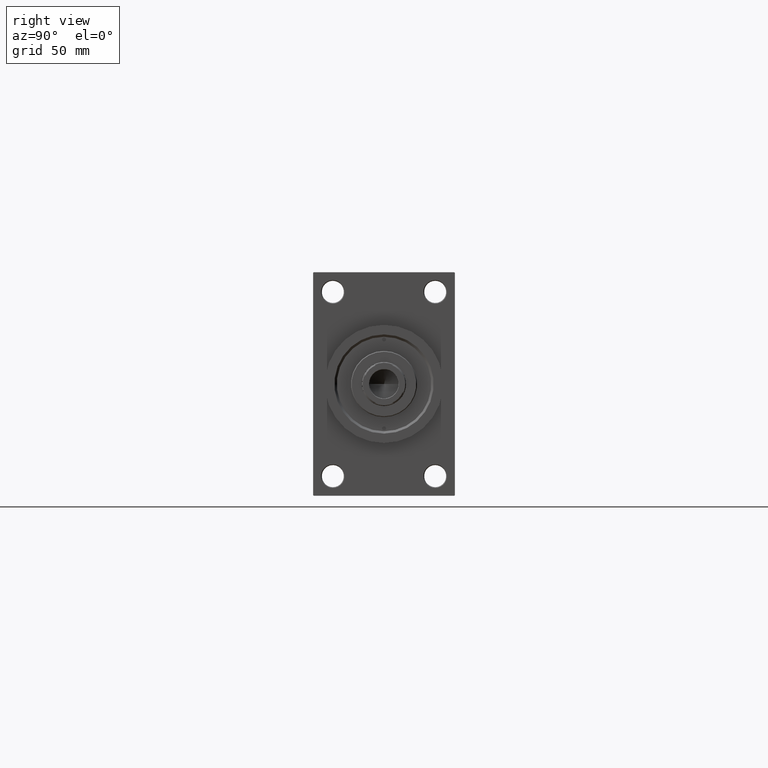
[diagram: clean part render]
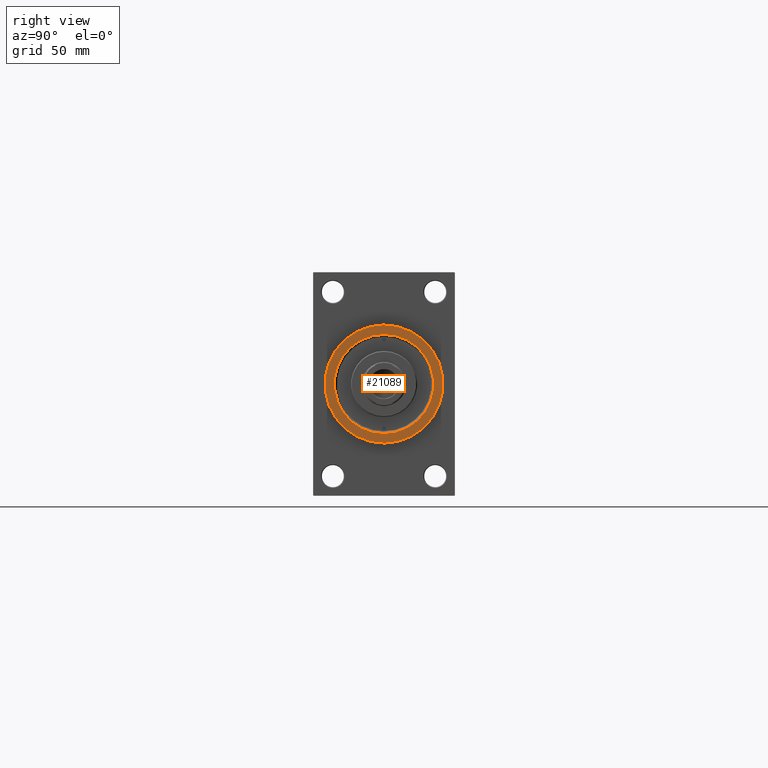
[diagram: same view with one face highlighted and labeled with its STEP entity id]
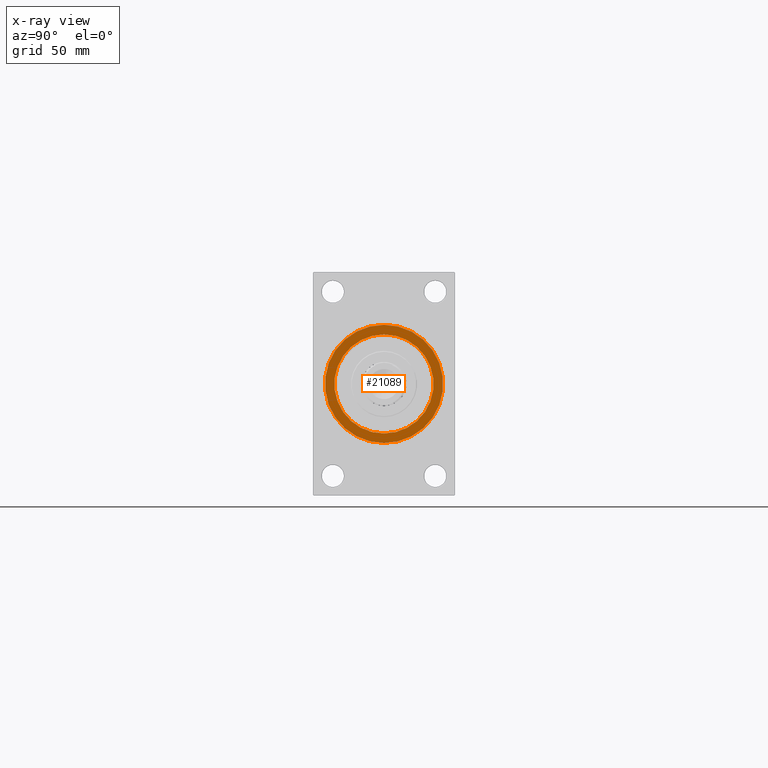
[diagram: x-ray of the same camera — body ghosted, the highlighted face saturated]
A machine part, right view. The second image highlights one B-rep face of the part: STEP entity #21089.
The next image is the same camera in x-ray: the body ghosted, the highlighted face saturated — about 0% of this face is hidden behind the body in this view.
In plain terms, the highlighted planar face has unit normal (1, 0, 0).
Its self-contained STEP definition (entity closure, byte-faithful):
#9 = EDGE_CURVE ( 'NONE', #11945, #34009, #27813, .T. ) ;
#1362 = ORIENTED_EDGE ( 'NONE', *, *, #11367, .T. ) ;
#1503 = CARTESIAN_POINT ( 'NONE',  ( 385.9999999999999432, 0.000000000000000000, 0.000000000000000000 ) ) ;
#1558 = FACE_OUTER_BOUND ( 'NONE', #30790, .T. ) ;
#2254 = FACE_BOUND ( 'NONE', #5325, .T. ) ;
#3527 = DIRECTION ( 'NONE',  ( 0.000000000000000000, 0.000000000000000000, -1.000000000000000000 ) ) ;
#3907 = ORIENTED_EDGE ( 'NONE', *, *, #7482, .T. ) ;
#4878 = EDGE_CURVE ( 'NONE', #9033, #45975, #26296, .T. ) ;
#5325 = EDGE_LOOP ( 'NONE', ( #31170, #3907 ) ) ;
#5759 = CIRCLE ( 'NONE', #20336, 31.50000000000008527 ) ;
#7482 = EDGE_CURVE ( 'NONE', #45975, #9033, #5759, .T. ) ;
#9033 = VERTEX_POINT ( 'NONE', #28896 ) ;
#10240 = CARTESIAN_POINT ( 'NONE',  ( 385.9999999999999432, 3.857637417314172944E-15, 31.50000000000008527 ) ) ;
#11367 = EDGE_CURVE ( 'NONE', #34009, #11945, #45664, .T. ) ;
#11550 = DIRECTION ( 'NONE',  ( 0.000000000000000000, 0.000000000000000000, -1.000000000000000000 ) ) ;
#11945 = VERTEX_POINT ( 'NONE', #26903 ) ;
#12360 = CARTESIAN_POINT ( 'NONE',  ( 385.9999999999999432, 0.000000000000000000, 0.000000000000000000 ) ) ;
#14309 = AXIS2_PLACEMENT_3D ( 'NONE', #22233, #36818, #3527 ) ;
#19728 = DIRECTION ( 'NONE',  ( 0.000000000000000000, 0.000000000000000000, -1.000000000000000000 ) ) ;
#20336 = AXIS2_PLACEMENT_3D ( 'NONE', #37657, #33826, #11550 ) ;
#21089 = ADVANCED_FACE ( 'NONE', ( #2254, #1558 ), #38679, .T. ) ;
#22233 = CARTESIAN_POINT ( 'NONE',  ( 385.9999999999999432, 0.000000000000000000, 0.000000000000000000 ) ) ;
#26296 = CIRCLE ( 'NONE', #39334, 31.50000000000008527 ) ;
#26304 = AXIS2_PLACEMENT_3D ( 'NONE', #1503, #33845, #19728 ) ;
#26903 = CARTESIAN_POINT ( 'NONE',  ( 385.9999999999999432, 4.592425496802575156E-15, -37.50000000000000711 ) ) ;
#27813 = CIRCLE ( 'NONE', #26304, 37.50000000000000711 ) ;
#28443 = ORIENTED_EDGE ( 'NONE', *, *, #9, .T. ) ;
#28896 = CARTESIAN_POINT ( 'NONE',  ( 385.9999999999999432, 0.000000000000000000, -31.50000000000008527 ) ) ;
#29712 = DIRECTION ( 'NONE',  ( -1.000000000000000000, -0.000000000000000000, -0.000000000000000000 ) ) ;
#30790 = EDGE_LOOP ( 'NONE', ( #1362, #28443 ) ) ;
#31170 = ORIENTED_EDGE ( 'NONE', *, *, #4878, .T. ) ;
#31493 = DIRECTION ( 'NONE',  ( 0.000000000000000000, 0.000000000000000000, -1.000000000000000000 ) ) ;
#33290 = CARTESIAN_POINT ( 'NONE',  ( 385.9999999999999432, 0.000000000000000000, 0.000000000000000000 ) ) ;
#33826 = DIRECTION ( 'NONE',  ( -1.000000000000000000, -0.000000000000000000, -0.000000000000000000 ) ) ;
#33845 = DIRECTION ( 'NONE',  ( 1.000000000000000000, 0.000000000000000000, 0.000000000000000000 ) ) ;
#34009 = VERTEX_POINT ( 'NONE', #43976 ) ;
#36818 = DIRECTION ( 'NONE',  ( 1.000000000000000000, 0.000000000000000000, 0.000000000000000000 ) ) ;
#37657 = CARTESIAN_POINT ( 'NONE',  ( 385.9999999999999432, 0.000000000000000000, 0.000000000000000000 ) ) ;
#38024 = DIRECTION ( 'NONE',  ( 0.000000000000000000, 0.000000000000000000, -1.000000000000000000 ) ) ;
#38679 = PLANE ( 'NONE',  #40748 ) ;
#39334 = AXIS2_PLACEMENT_3D ( 'NONE', #33290, #29712, #38024 ) ;
#40748 = AXIS2_PLACEMENT_3D ( 'NONE', #12360, #42276, #31493 ) ;
#42276 = DIRECTION ( 'NONE',  ( 1.000000000000000000, 0.000000000000000000, 0.000000000000000000 ) ) ;
#43976 = CARTESIAN_POINT ( 'NONE',  ( 385.9999999999999432, 0.000000000000000000, 37.50000000000000711 ) ) ;
#45664 = CIRCLE ( 'NONE', #14309, 37.50000000000000711 ) ;
#45975 = VERTEX_POINT ( 'NONE', #10240 ) ;